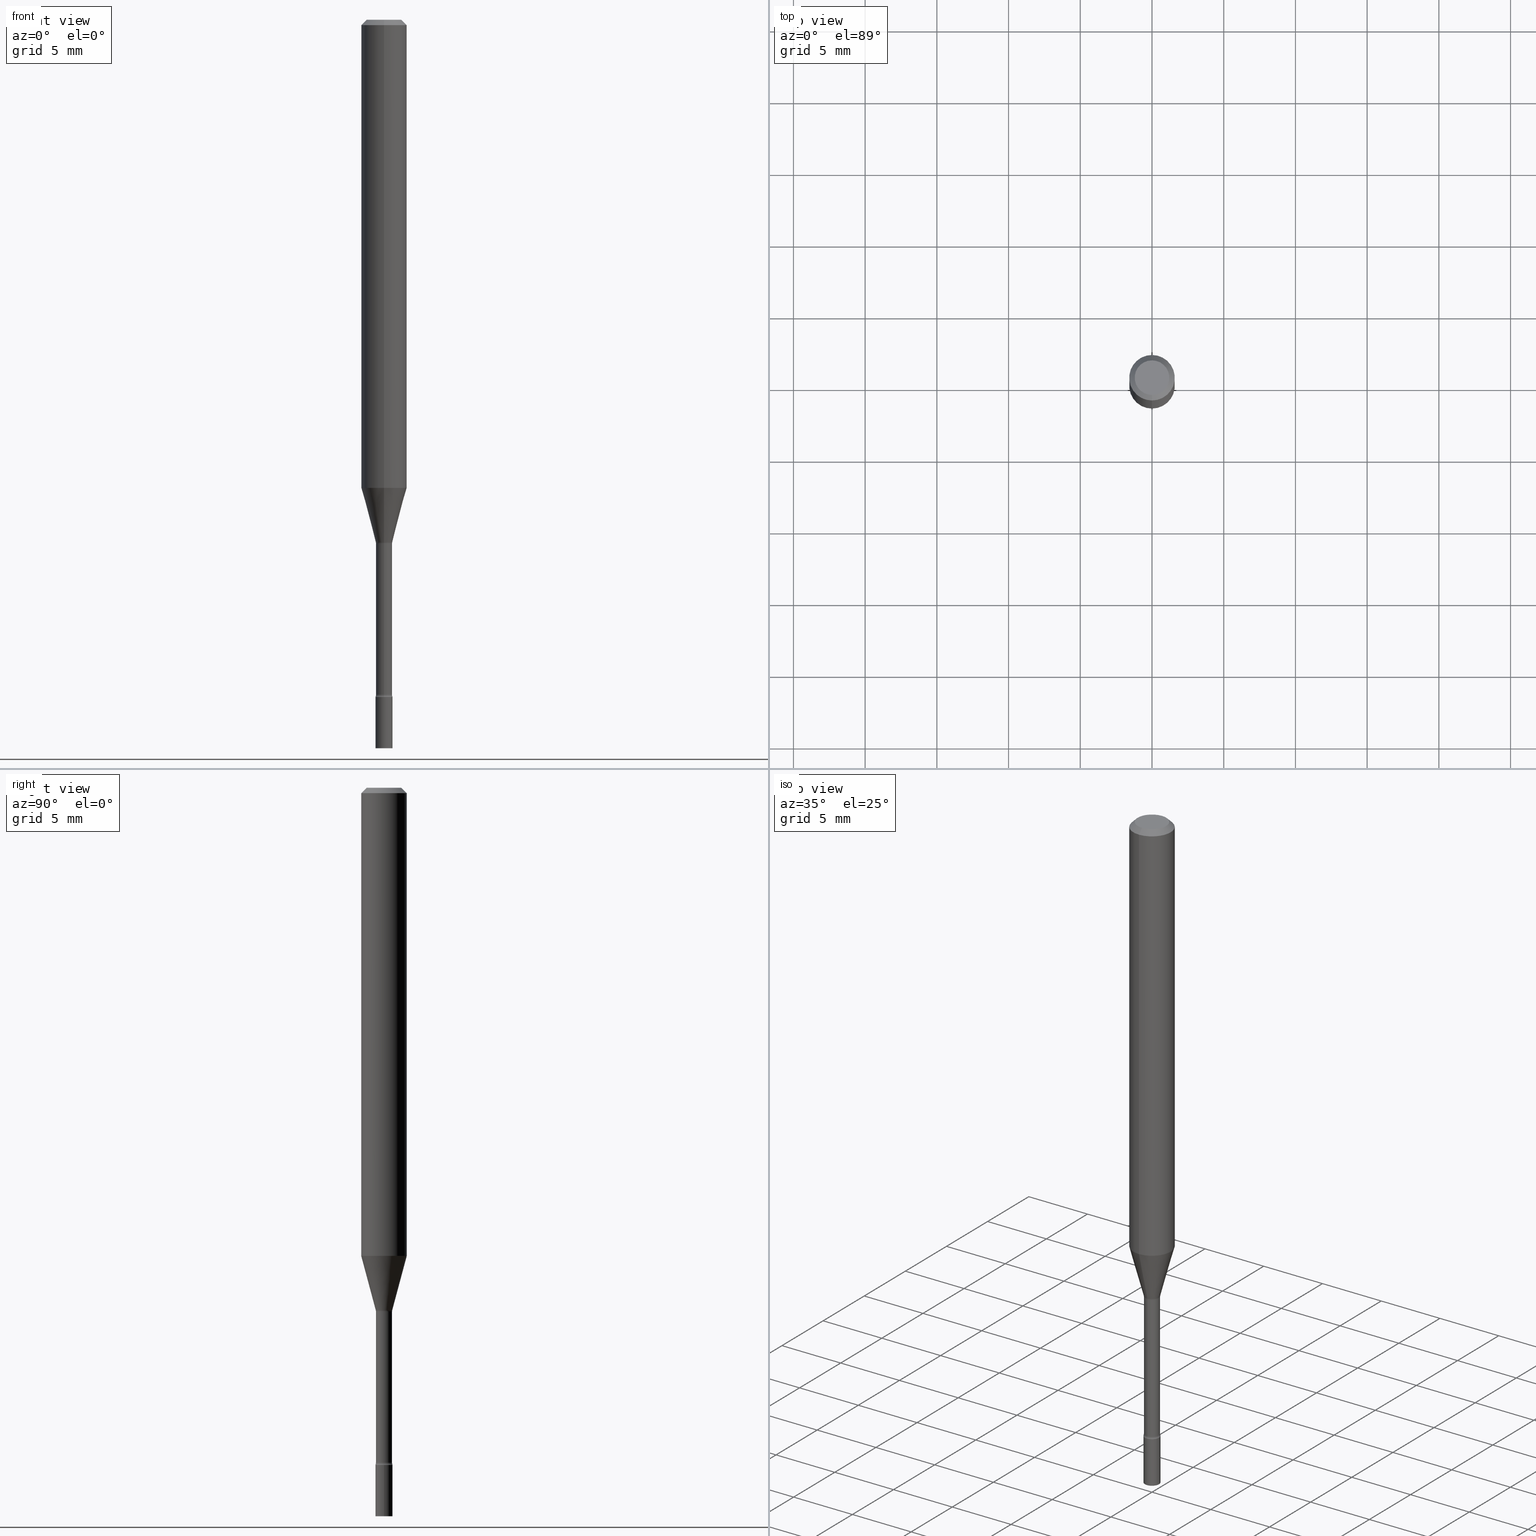
[diagram: canonical four-view strip — front | top / right | iso, engineering-drawing reading convention]
A machine part, canonical four-view strip (front | top / right | iso — engineering-drawing reading convention). The complete STEP part file that produces these views, byte-faithful:
ISO-10303-21;
HEADER;
FILE_DESCRIPTION (( 'STEP AP203' ),
    '1' );
FILE_NAME ('01348.STEP',
    '2024-03-08T21:15:39',
    ( '' ),
    ( '' ),
    'SwSTEP 2.0',
    'SolidWorks 2023',
    '' );
FILE_SCHEMA (( 'CONFIG_CONTROL_DESIGN' ));
ENDSEC;

DATA;
#1 = DIRECTION ( 'NONE',  ( 2.438088387897960049E-29, -3.491481338843145188E-15, -1.000000000000000000 ) ) ;
#2 = AXIS2_PLACEMENT_3D ( 'NONE', #491, #159, #312 ) ;
#3 = LINE ( 'NONE', #311, #17 ) ;
#4 = PRODUCT ( '01348', '01348', '', ( #249 ) ) ;
#5 = DIRECTION ( 'NONE',  ( 0.000000000000000000, 0.000000000000000000, 1.000000000000000000 ) ) ;
#6 = TOROIDAL_SURFACE ( 'NONE', #467, 0.03710000000000000103, 0.01500000000000003240 ) ;
#7 = ADVANCED_FACE ( 'NONE', ( #31 ), #100, .F. ) ;
#8 = DIRECTION ( 'NONE',  ( -6.982962677686266711E-15, -1.000000000000000000, 0.000000000000000000 ) ) ;
#9 = EDGE_LOOP ( 'NONE', ( #352, #503, #49, #32 ) ) ;
#10 = CARTESIAN_POINT ( 'NONE',  ( 0.02350000000000000352, -1.640996229256272766E-16, 1.145901542312045115E-30 ) ) ;
#11 = AXIS2_PLACEMENT_3D ( 'NONE', #519, #27, #153 ) ;
#12 = CONICAL_SURFACE ( 'NONE', #156, 0.06250000000000000000, 0.7853981633974483900 ) ;
#13 = DIRECTION ( 'NONE',  ( 7.105427357601001859E-15, 1.000000000000000000, 0.000000000000000000 ) ) ;
#14 = CALENDAR_DATE ( 2024, 8, 3 ) ;
#15 = ORIENTED_EDGE ( 'NONE', *, *, #21, .F. ) ;
#16 = DIRECTION ( 'NONE',  ( -6.982962677686265922E-15, -1.000000000000000000, 3.491517065858421989E-15 ) ) ;
#17 = VECTOR ( 'NONE', #393, 39.37007874015748143 ) ;
#18 = AXIS2_PLACEMENT_3D ( 'NONE', #412, #211, #175 ) ;
#19 = CARTESIAN_POINT ( 'NONE',  ( 1.640996229256727347E-16, 0.02349999999999350872, -1.858999999999999986 ) ) ;
#20 = DATE_AND_TIME ( #335, #116 ) ;
#21 = EDGE_CURVE ( 'NONE', #34, #157, #233, .T. ) ;
#22 = VERTEX_POINT ( 'NONE', #398 ) ;
#23 = COORDINATED_UNIVERSAL_TIME_OFFSET ( 5, 0, .BEHIND. ) ;
#24 = DIRECTION ( 'NONE',  ( -2.445443858143710310E-29, 3.491517065858421989E-15, 1.000000000000000000 ) ) ;
#25 = CC_DESIGN_DATE_AND_TIME_ASSIGNMENT ( #306, #55, ( #26 ) ) ;
#26 = SECURITY_CLASSIFICATION ( '', '', #57 ) ;
#27 = DIRECTION ( 'NONE',  ( -2.445468806185136597E-29, 3.491481338843145583E-15, 1.000000000000000000 ) ) ;
#28 = DIRECTION ( 'NONE',  ( -6.982962677686265922E-15, -1.000000000000000000, 3.491517065858421989E-15 ) ) ;
#29 = ORIENTED_EDGE ( 'NONE', *, *, #214, .F. ) ;
#30 = CARTESIAN_POINT ( 'NONE',  ( 4.440892098500937762E-16, 0.06249999999999548278, -1.285225147374218002 ) ) ;
#31 = FACE_OUTER_BOUND ( 'NONE', #438, .T. ) ;
#32 = ORIENTED_EDGE ( 'NONE', *, *, #272, .F. ) ;
#33 = TOROIDAL_SURFACE ( 'NONE', #2, 0.03710000000000005654, 0.01499999999999999077 ) ;
#34 = VERTEX_POINT ( 'NONE', #200 ) ;
#35 = CARTESIAN_POINT ( 'NONE',  ( 0.000000000000000000, 0.000000000000000000, 0.000000000000000000 ) ) ;
#36 = ORIENTED_EDGE ( 'NONE', *, *, #106, .T. ) ;
#37 = UNCERTAINTY_MEASURE_WITH_UNIT (LENGTH_MEASURE( 1.000000000000000082E-05 ), #320, 'distance_accuracy_value', 'NONE');
#38 = EDGE_CURVE ( 'NONE', #356, #264, #274, .T. ) ;
#39 = ORIENTED_EDGE ( 'NONE', *, *, #392, .F. ) ;
#40 = AXIS2_PLACEMENT_3D ( 'NONE', #375, #137, #416 ) ;
#41 = DIRECTION ( 'NONE',  ( 6.982962677686265922E-15, 1.000000000000000000, -3.483106191921935554E-15 ) ) ;
#42 = CARTESIAN_POINT ( 'NONE',  ( 4.530606056085395644E-29, -6.468636894208376404E-15, -1.852672283192177582 ) ) ;
#43 = DIRECTION ( 'NONE',  ( -6.982962677686265922E-15, -1.000000000000000000, 4.370956789862821150E-15 ) ) ;
#44 = ORIENTED_EDGE ( 'NONE', *, *, #392, .T. ) ;
#45 = CARTESIAN_POINT ( 'NONE',  ( 4.546080132289157985E-29, -6.490730225430807610E-15, -1.858999999999999986 ) ) ;
#46 = AXIS2_PLACEMENT_3D ( 'NONE', #440, #360, #316 ) ;
#47 = DIRECTION ( 'NONE',  ( -2.445443858143710310E-29, 3.491517065858421989E-15, 1.000000000000000000 ) ) ;
#48 = CARTESIAN_POINT ( 'NONE',  ( 4.546126510698169319E-29, -6.490663808909408226E-15, -1.858999999999999986 ) ) ;
#49 = ORIENTED_EDGE ( 'NONE', *, *, #483, .F. ) ;
#50 = EDGE_CURVE ( 'NONE', #231, #452, #114, .T. ) ;
#51 = APPROVAL_DATE_TIME ( #147, #344 ) ;
#52 = EDGE_LOOP ( 'NONE', ( #104, #271, #358, #454 ) ) ;
#53 = AXIS2_PLACEMENT_3D ( 'NONE', #278, #113, #275 ) ;
#54 = PRODUCT_DEFINITION_FORMATION_WITH_SPECIFIED_SOURCE ( 'ANY', '', #4, .NOT_KNOWN. ) ;
#55 = DATE_TIME_ROLE ( 'classification_date' ) ;
#56 = VERTEX_POINT ( 'NONE', #442 ) ;
#57 = SECURITY_CLASSIFICATION_LEVEL ( 'unclassified' ) ;
#58 = EDGE_CURVE ( 'NONE', #455, #56, #509, .T. ) ;
#59 = CARTESIAN_POINT ( 'NONE',  ( 3.840629472727447874E-16, 0.04749999999999999362, -1.947592745229184119E-16 ) ) ;
#60 = APPLICATION_CONTEXT ( 'configuration controlled 3d designs of mechanical parts and assemblies' ) ;
#61 = CARTESIAN_POINT ( 'NONE',  ( -2.590679153421253437E-16, -0.03710000000000501785, -1.437974787463811133 ) ) ;
#62 = CONICAL_SURFACE ( 'NONE', #409, 0.06250000000000000000, 0.7853981633974483900 ) ;
#63 = AXIS2_PLACEMENT_3D ( 'NONE', #19, #252, #493 ) ;
#64 = ORIENTED_EDGE ( 'NONE', *, *, #296, .T. ) ;
#65 = CARTESIAN_POINT ( 'NONE',  ( -0.02350000000000000352, -6.569835700394226398E-15, -1.858999999999999986 ) ) ;
#66 = ORIENTED_EDGE ( 'NONE', *, *, #201, .T. ) ;
#67 = FACE_OUTER_BOUND ( 'NONE', #432, .T. ) ;
#68 = EDGE_LOOP ( 'NONE', ( #481, #76 ) ) ;
#69 = EDGE_CURVE ( 'NONE', #452, #231, #215, .T. ) ;
#70 = ORIENTED_EDGE ( 'NONE', *, *, #97, .T. ) ;
#71 = CARTESIAN_POINT ( 'NONE',  ( 4.890937612370273194E-29, -6.982962677686291165E-15, -2.000000000000000000 ) ) ;
#72 =( LENGTH_UNIT ( ) NAMED_UNIT ( * ) SI_UNIT ( $, .METRE. ) );
#73 = CIRCLE ( 'NONE', #420, 0.06250000000000000000 ) ;
#74 = ORIENTED_EDGE ( 'NONE', *, *, #427, .F. ) ;
#75 = CIRCLE ( 'NONE', #347, 0.01500000000000003240 ) ;
#76 = ORIENTED_EDGE ( 'NONE', *, *, #239, .T. ) ;
#77 = DIRECTION ( 'NONE',  ( -2.445443858143710310E-29, 3.491517065858421989E-15, 1.000000000000000000 ) ) ;
#78 = CARTESIAN_POINT ( 'NONE',  ( 3.668165787215572525E-31, -5.237275598787644570E-17, -0.01500000000000003067 ) ) ;
#79 = ORIENTED_EDGE ( 'NONE', *, *, #38, .F. ) ;
#80 = ADVANCED_FACE ( 'NONE', ( #120 ), #62, .T. ) ;
#81 = LINE ( 'NONE', #241, #124 ) ;
#82 = AXIS2_PLACEMENT_3D ( 'NONE', #230, #478, #382 ) ;
#83 = ORIENTED_EDGE ( 'NONE', *, *, #377, .T. ) ;
#84 = MANIFOLD_SOLID_BREP ( 'Body-Move/Copy2[1]', #476 ) ;
#85 = CYLINDRICAL_SURFACE ( 'NONE', #395, 0.02350000000000000352 ) ;
#86 = CIRCLE ( 'NONE', #380, 0.02209999999999999118 ) ;
#87 = PERSON_AND_ORGANIZATION ( #199, #430 ) ;
#88 = EDGE_CURVE ( 'NONE', #310, #34, #81, .T. ) ;
#89 = ORIENTED_EDGE ( 'NONE', *, *, #272, .T. ) ;
#90 = EDGE_LOOP ( 'NONE', ( #396, #172, #44, #29 ) ) ;
#91 = PERSON_AND_ORGANIZATION_ROLE ( 'design_supplier' ) ;
#92 = AXIS2_PLACEMENT_3D ( 'NONE', #131, #295, #379 ) ;
#93 = ORIENTED_EDGE ( 'NONE', *, *, #427, .T. ) ;
#94 = SHAPE_DEFINITION_REPRESENTATION ( #408, #353 ) ;
#95 = CARTESIAN_POINT ( 'NONE',  ( -0.02350000000000000352, 1.669775429036235687E-16, -1.155949746209903035E-30 ) ) ;
#96 = PERSON_AND_ORGANIZATION ( #199, #430 ) ;
#97 = EDGE_CURVE ( 'NONE', #105, #403, #362, .T. ) ;
#98 = CYLINDRICAL_SURFACE ( 'NONE', #456, 0.02210000000000002587 ) ;
#99 = CARTESIAN_POINT ( 'NONE',  ( 0.000000000000000000, 0.000000000000000000, 0.000000000000000000 ) ) ;
#100 = PLANE ( 'NONE',  #82 ) ;
#101 = ADVANCED_FACE ( 'NONE', ( #433 ), #6, .F. ) ;
#102 = CIRCLE ( 'NONE', #485, 0.01499999999999998904 ) ;
#103 = AXIS2_PLACEMENT_3D ( 'NONE', #480, #144, #164 ) ;
#104 = ORIENTED_EDGE ( 'NONE', *, *, #21, .T. ) ;
#105 = VERTEX_POINT ( 'NONE', #123 ) ;
#106 = EDGE_CURVE ( 'NONE', #105, #169, #284, .T. ) ;
#107 = APPLICATION_PROTOCOL_DEFINITION ( 'international standard', 'config_control_design', 1994, #451 ) ;
#108 = DIRECTION ( 'NONE',  ( -6.982962677686265922E-15, -1.000000000000000000, 3.483106191921935554E-15 ) ) ;
#109 = FACE_OUTER_BOUND ( 'NONE', #445, .T. ) ;
#110 = DIRECTION ( 'NONE',  ( 1.000000000000000000, -6.982962677686269866E-15, 0.000000000000000000 ) ) ;
#111 = DIRECTION ( 'NONE',  ( -1.000000000000000000, 6.982962677686265922E-15, -4.883557194083112340E-29 ) ) ;
#112 = EDGE_LOOP ( 'NONE', ( #119, #339, #64, #226 ) ) ;
#113 = DIRECTION ( 'NONE',  ( -2.445468806185136597E-29, 3.491481338843145583E-15, 1.000000000000000000 ) ) ;
#114 = CIRCLE ( 'NONE', #240, 0.04749999999999999362 ) ;
#115 = ORIENTED_EDGE ( 'NONE', *, *, #431, .T. ) ;
#116 = LOCAL_TIME ( 16, 15, 39.00000000000000000, #518 ) ;
#117 = FACE_OUTER_BOUND ( 'NONE', #399, .T. ) ;
#118 = DIRECTION ( 'NONE',  ( -6.982962677686266711E-15, -1.000000000000000000, 3.491517065858422384E-15 ) ) ;
#119 = ORIENTED_EDGE ( 'NONE', *, *, #155, .F. ) ;
#120 = FACE_OUTER_BOUND ( 'NONE', #112, .T. ) ;
#121 = ORIENTED_EDGE ( 'NONE', *, *, #50, .F. ) ;
#122 = APPROVAL ( #213, 'UNSPECIFIED' ) ;
#123 = CARTESIAN_POINT ( 'NONE',  ( 1.620037437533484049E-16, 0.02209999999999359352, -1.852672283192177582 ) ) ;
#124 = VECTOR ( 'NONE', #401, 39.37007874015748854 ) ;
#125 = CC_DESIGN_APPROVAL ( #122, ( #397 ) ) ;
#126 = EDGE_CURVE ( 'NONE', #105, #264, #102, .T. ) ;
#127 = ORIENTED_EDGE ( 'NONE', *, *, #280, .T. ) ;
#128 = FACE_OUTER_BOUND ( 'NONE', #9, .T. ) ;
#129 = LINE ( 'NONE', #269, #495 ) ;
#130 = PRODUCT_RELATED_PRODUCT_CATEGORY ( 'detail', '', ( #4 ) ) ;
#131 = CARTESIAN_POINT ( 'NONE',  ( 3.668165787215572525E-31, -5.237275598787644570E-17, -0.01500000000000003067 ) ) ;
#132 = FACE_OUTER_BOUND ( 'NONE', #90, .T. ) ;
#133 = DIRECTION ( 'NONE',  ( -2.445443858143710310E-29, 3.491517065858421989E-15, 1.000000000000000000 ) ) ;
#134 = EDGE_CURVE ( 'NONE', #403, #340, #289, .T. ) ;
#135 = AXIS2_PLACEMENT_3D ( 'NONE', #441, #77, #236 ) ;
#136 = DIRECTION ( 'NONE',  ( -2.445443858143710310E-29, 3.491517065858421989E-15, 1.000000000000000000 ) ) ;
#137 = DIRECTION ( 'NONE',  ( -2.445443858143710310E-29, 3.491517065858421989E-15, 1.000000000000000000 ) ) ;
#138 = VERTEX_POINT ( 'NONE', #268 ) ;
#139 = CARTESIAN_POINT ( 'NONE',  ( -1.543234751768666594E-16, -0.02210000000000002587, 7.716252715547121836E-17 ) ) ;
#140 = CARTESIAN_POINT ( 'NONE',  ( 3.516486612168884789E-29, -5.020713510704033557E-15, -1.437974787463811133 ) ) ;
#141 = PERSON_AND_ORGANIZATION ( #199, #430 ) ;
#142 = CARTESIAN_POINT ( 'NONE',  ( -4.364351673553916201E-16, -0.06250000000000000000, 2.182198166161513743E-16 ) ) ;
#143 = DIRECTION ( 'NONE',  ( -6.982962677686265922E-15, -1.000000000000000000, 0.000000000000000000 ) ) ;
#144 = DIRECTION ( 'NONE',  ( -2.445468806185136597E-29, 3.491481338843145583E-15, 1.000000000000000000 ) ) ;
#145 = ORIENTED_EDGE ( 'NONE', *, *, #292, .F. ) ;
#146 = ORIENTED_EDGE ( 'NONE', *, *, #50, .T. ) ;
#147 = DATE_AND_TIME ( #341, #197 ) ;
#148 = CARTESIAN_POINT ( 'NONE',  ( -1.543234751768312592E-16, -0.02210000000000501147, -1.437974787463811133 ) ) ;
#149 = AXIS2_PLACEMENT_3D ( 'NONE', #42, #309, #479 ) ;
#150 = DIRECTION ( 'NONE',  ( 1.839019923739596765E-15, 0.2588190451025244587, 0.9659258262890673130 ) ) ;
#151 = VECTOR ( 'NONE', #391, 39.37007874015748143 ) ;
#152 = DESIGN_CONTEXT ( 'detailed design', #60, 'design' ) ;
#153 = DIRECTION ( 'NONE',  ( 1.000000000000000000, -6.982962677686269866E-15, 0.000000000000000000 ) ) ;
#154 = DIRECTION ( 'NONE',  ( -6.982962677686265922E-15, -1.000000000000000000, 3.491517065858421989E-15 ) ) ;
#155 = EDGE_CURVE ( 'NONE', #231, #56, #3, .T. ) ;
#156 = AXIS2_PLACEMENT_3D ( 'NONE', #428, #349, #41 ) ;
#157 = VERTEX_POINT ( 'NONE', #30 ) ;
#158 = CARTESIAN_POINT ( 'NONE',  ( 3.506992700505635745E-29, -5.007158444009865357E-15, -1.434092501787273211 ) ) ;
#159 = DIRECTION ( 'NONE',  ( -2.445443858143710310E-29, 3.491517065858421989E-15, 1.000000000000000000 ) ) ;
#160 = EDGE_CURVE ( 'NONE', #22, #138, #246, .T. ) ;
#161 = DIRECTION ( 'NONE',  ( -2.445443858143710310E-29, 3.491517065858421989E-15, 1.000000000000000000 ) ) ;
#162 = DIRECTION ( 'NONE',  ( -2.445443858143710310E-29, 3.491517065858421989E-15, 1.000000000000000000 ) ) ;
#163 = ORIENTED_EDGE ( 'NONE', *, *, #464, .F. ) ;
#164 = DIRECTION ( 'NONE',  ( 1.000000000000000000, -6.982962677686269866E-15, 0.000000000000000000 ) ) ;
#165 = ADVANCED_FACE ( 'NONE', ( #192 ), #314, .T. ) ;
#166 = TOROIDAL_SURFACE ( 'NONE', #40, 0.03710000000000000103, 0.01500000000000003240 ) ;
#167 = DIRECTION ( 'NONE',  ( -6.982962677686265922E-15, -1.000000000000000000, 3.491517065858421989E-15 ) ) ;
#168 = PLANE ( 'NONE',  #196 ) ;
#169 = VERTEX_POINT ( 'NONE', #261 ) ;
#170 = PLANE ( 'NONE',  #63 ) ;
#171 = APPROVAL ( #218, 'UNSPECIFIED' ) ;
#172 = ORIENTED_EDGE ( 'NONE', *, *, #490, .T. ) ;
#173 = CARTESIAN_POINT ( 'NONE',  ( 4.530606056085395644E-29, -6.468636894208376404E-15, -1.852672283192177582 ) ) ;
#174 = ORIENTED_EDGE ( 'NONE', *, *, #520, .F. ) ;
#175 = DIRECTION ( 'NONE',  ( -6.982962677686266711E-15, -1.000000000000000000, 0.000000000000000000 ) ) ;
#176 = APPROVAL_ROLE ( '' ) ;
#177 = CLOSED_SHELL ( 'NONE', ( #288, #355, #368, #472, #417, #165, #248, #318, #80, #7, #413, #228, #203, #101 ) ) ;
#178 = AXIS2_PLACEMENT_3D ( 'NONE', #404, #367, #167 ) ;
#179 = CC_DESIGN_DATE_AND_TIME_ASSIGNMENT ( #469, #221, ( #397 ) ) ;
#180 = ORIENTED_EDGE ( 'NONE', *, *, #134, .F. ) ;
#181 = APPLICATION_PROTOCOL_DEFINITION ( 'international standard', 'config_control_design', 1994, #60 ) ;
#182 = DIRECTION ( 'NONE',  ( -2.445468806185136597E-29, 3.491481338843145583E-15, 1.000000000000000000 ) ) ;
#183 = AXIS2_PLACEMENT_3D ( 'NONE', #78, #238, #108 ) ;
#184 = CARTESIAN_POINT ( 'NONE',  ( 4.440892098500941706E-16, 0.06249999999999995143, -0.01500000000000024751 ) ) ;
#185 = CYLINDRICAL_SURFACE ( 'NONE', #178, 0.06250000000000000000 ) ;
#186 = CC_DESIGN_APPROVAL ( #344, ( #54 ) ) ;
#187 = DIRECTION ( 'NONE',  ( -6.982962677686266711E-15, -1.000000000000000000, 0.000000000000000000 ) ) ;
#188 = LINE ( 'NONE', #343, #308 ) ;
#189 = EDGE_CURVE ( 'NONE', #340, #169, #86, .T. ) ;
#190 = DIRECTION ( 'NONE',  ( -6.982962677686265922E-15, -1.000000000000000000, 3.491517065858421989E-15 ) ) ;
#191 = CARTESIAN_POINT ( 'NONE',  ( 4.530652276630265840E-29, -6.468570703757412318E-15, -1.852672283192177582 ) ) ;
#192 = FACE_OUTER_BOUND ( 'NONE', #217, .T. ) ;
#193 = FACE_OUTER_BOUND ( 'NONE', #449, .T. ) ;
#194 = EDGE_LOOP ( 'NONE', ( #317, #83, #198, #235 ) ) ;
#195 = VECTOR ( 'NONE', #293, 39.37007874015748143 ) ;
#196 = AXIS2_PLACEMENT_3D ( 'NONE', #48, #373, #338 ) ;
#197 = LOCAL_TIME ( 16, 15, 39.00000000000000000, #421 ) ;
#198 = ORIENTED_EDGE ( 'NONE', *, *, #88, .T. ) ;
#199 = PERSON ( 'UNSPECIFIED', 'UNSPECIFIED', 'UNSPECIFIED', ('UNSPECIFIED'), ('UNSPECIFIED'), ('UNSPECIFIED') ) ;
#200 = CARTESIAN_POINT ( 'NONE',  ( -4.364351673553603122E-16, -0.06250000000000451028, -1.285225147374217336 ) ) ;
#201 = EDGE_CURVE ( 'NONE', #138, #22, #494, .T. ) ;
#202 = CIRCLE ( 'NONE', #92, 0.06250000000000000000 ) ;
#203 = ADVANCED_FACE ( 'NONE', ( #471 ), #98, .T. ) ;
#204 = VECTOR ( 'NONE', #342, 39.37007874015748143 ) ;
#205 = ADVANCED_FACE ( 'NONE', ( #67 ), #466, .T. ) ;
#206 = DIRECTION ( 'NONE',  ( -2.445443858143710310E-29, 3.491517065858421989E-15, 1.000000000000000000 ) ) ;
#207 = FACE_OUTER_BOUND ( 'NONE', #52, .T. ) ;
#208 = ORIENTED_EDGE ( 'NONE', *, *, #189, .T. ) ;
#209 = ORIENTED_EDGE ( 'NONE', *, *, #201, .F. ) ;
#210 = VECTOR ( 'NONE', #501, 39.37007874015748143 ) ;
#211 = DIRECTION ( 'NONE',  ( -2.445443858143710310E-29, 3.491517065858421989E-15, 1.000000000000000000 ) ) ;
#212 = CIRCLE ( 'NONE', #477, 0.02210000000000006057 ) ;
#213 = APPROVAL_STATUS ( 'not_yet_approved' ) ;
#214 = EDGE_CURVE ( 'NONE', #310, #340, #446, .T. ) ;
#215 = CIRCLE ( 'NONE', #436, 0.04749999999999999362 ) ;
#216 = AXIS2_PLACEMENT_3D ( 'NONE', #35, #5, #332 ) ;
#217 = EDGE_LOOP ( 'NONE', ( #324, #497, #15, #402 ) ) ;
#218 = APPROVAL_STATUS ( 'not_yet_approved' ) ;
#219 = ADVANCED_FACE ( 'NONE', ( #193 ), #474, .T. ) ;
#220 = ORIENTED_EDGE ( 'NONE', *, *, #431, .F. ) ;
#221 = DATE_TIME_ROLE ( 'creation_date' ) ;
#222 = DIRECTION ( 'NONE',  ( -2.445443858143710310E-29, 3.491517065858421989E-15, 1.000000000000000000 ) ) ;
#223 = CC_DESIGN_PERSON_AND_ORGANIZATION_ASSIGNMENT ( #329, #253, ( #54 ) ) ;
#224 = DIRECTION ( 'NONE',  ( -2.445443858143710310E-29, 3.491517065858421989E-15, 1.000000000000000000 ) ) ;
#225 = CONICAL_SURFACE ( 'NONE', #135, 0.02261111260566396955, 0.2617993877991497409 ) ;
#226 = ORIENTED_EDGE ( 'NONE', *, *, #58, .T. ) ;
#227 = CIRCLE ( 'NONE', #18, 0.02261111260566396955 ) ;
#228 = ADVANCED_FACE ( 'NONE', ( #117 ), #33, .F. ) ;
#229 = CARTESIAN_POINT ( 'NONE',  ( 0.000000000000000000, 0.000000000000000000, 0.000000000000000000 ) ) ;
#230 = CARTESIAN_POINT ( 'NONE',  ( 3.316907271900976096E-16, 0.04749999999999999362, -1.803031675755967257E-16 ) ) ;
#231 = VERTEX_POINT ( 'NONE', #482 ) ;
#232 = CARTESIAN_POINT ( 'NONE',  ( 0.000000000000000000, 0.000000000000000000, 0.000000000000000000 ) ) ;
#233 = CIRCLE ( 'NONE', #516, 0.06250000000000000000 ) ;
#234 = CC_DESIGN_SECURITY_CLASSIFICATION ( #26, ( #54 ) ) ;
#235 = ORIENTED_EDGE ( 'NONE', *, *, #255, .F. ) ;
#236 = DIRECTION ( 'NONE',  ( -6.982962677686266711E-15, -1.000000000000000000, 0.000000000000000000 ) ) ;
#237 = CC_DESIGN_PERSON_AND_ORGANIZATION_ASSIGNMENT ( #96, #91, ( #54 ) ) ;
#238 = DIRECTION ( 'NONE',  ( -2.445443858143710310E-29, 3.491517065858421989E-15, 1.000000000000000000 ) ) ;
#239 = EDGE_CURVE ( 'NONE', #444, #322, #283, .T. ) ;
#240 = AXIS2_PLACEMENT_3D ( 'NONE', #321, #487, #118 ) ;
#241 = CARTESIAN_POINT ( 'NONE',  ( -1.578925554262778977E-16, -0.02261111260566897943, -1.434092501787273211 ) ) ;
#242 = DIRECTION ( 'NONE',  ( 1.000000000000000000, -7.105427357601001070E-15, 4.926315946071830804E-29 ) ) ;
#243 = CARTESIAN_POINT ( 'NONE',  ( 2.636113549670428316E-16, 0.03709999999999358949, -1.852672283192177582 ) ) ;
#244 = DIRECTION ( 'NONE',  ( -2.445443858143710310E-29, 3.491517065858421989E-15, 1.000000000000000000 ) ) ;
#245 = DIRECTION ( 'NONE',  ( -2.445468806185136597E-29, 3.491481338843145583E-15, 1.000000000000000000 ) ) ;
#246 = CIRCLE ( 'NONE', #307, 0.02350000000000000352 ) ;
#247 = APPROVAL_PERSON_ORGANIZATION ( #300, #344, #423 ) ;
#248 = ADVANCED_FACE ( 'NONE', ( #439 ), #225, .T. ) ;
#249 = MECHANICAL_CONTEXT ( 'NONE', #451, 'mechanical' ) ;
#250 = LINE ( 'NONE', #142, #204 ) ;
#251 = MANIFOLD_SOLID_BREP ( 'Body-Move/Copy2[2]', #177 ) ;
#252 = DIRECTION ( 'NONE',  ( -2.445443858143710310E-29, 3.491517065858421989E-15, 1.000000000000000000 ) ) ;
#253 = PERSON_AND_ORGANIZATION_ROLE ( 'creator' ) ;
#254 = DIRECTION ( 'NONE',  ( -2.445443858143710310E-29, 3.491517065858421989E-15, 1.000000000000000000 ) ) ;
#255 = EDGE_CURVE ( 'NONE', #157, #34, #73, .T. ) ;
#256 = AXIS2_PLACEMENT_3D ( 'NONE', #61, #111, #348 ) ;
#257 = AXIS2_PLACEMENT_3D ( 'NONE', #140, #133, #411 ) ;
#258 = CARTESIAN_POINT ( 'NONE',  ( 3.142945942978125100E-29, -4.487385535527487373E-15, -1.285225147374217780 ) ) ;
#259 = LOCAL_TIME ( 16, 15, 39.00000000000000000, #511 ) ;
#260 = APPROVAL_STATUS ( 'not_yet_approved' ) ;
#261 = CARTESIAN_POINT ( 'NONE',  ( 1.570299446030275858E-16, 0.02209999999999497436, -1.437974787463811133 ) ) ;
#262 = FACE_OUTER_BOUND ( 'NONE', #299, .T. ) ;
#263 = ADVANCED_FACE ( 'NONE', ( #450 ), #168, .T. ) ;
#264 = VERTEX_POINT ( 'NONE', #327 ) ;
#265 = VECTOR ( 'NONE', #504, 39.37007874015748143 ) ;
#266 = ADVANCED_FACE ( 'NONE', ( #128 ), #85, .T. ) ;
#267 = APPROVAL_PERSON_ORGANIZATION ( #141, #171, #415 ) ;
#268 = CARTESIAN_POINT ( 'NONE',  ( -0.02350000000000000352, -6.569835700394226398E-15, -2.000000000000000000 ) ) ;
#269 = CARTESIAN_POINT ( 'NONE',  ( 4.364351673553919652E-16, 0.06249999999999995143, -0.01500000000000024751 ) ) ;
#270 = DIRECTION ( 'NONE',  ( 6.982962677686265922E-15, 1.000000000000000000, -3.483106191921935554E-15 ) ) ;
#271 = ORIENTED_EDGE ( 'NONE', *, *, #359, .T. ) ;
#272 = EDGE_CURVE ( 'NONE', #22, #322, #507, .T. ) ;
#273 = VERTEX_POINT ( 'NONE', #462 ) ;
#274 = CIRCLE ( 'NONE', #46, 0.02350000000000000352 ) ;
#275 = DIRECTION ( 'NONE',  ( 1.000000000000000000, -6.982962677686269866E-15, 0.000000000000000000 ) ) ;
#276 = APPROVAL_PERSON_ORGANIZATION ( #87, #122, #176 ) ;
#277 = ORIENTED_EDGE ( 'NONE', *, *, #126, .F. ) ;
#278 = CARTESIAN_POINT ( 'NONE',  ( 4.546126510698169319E-29, -6.490663808909408226E-15, -1.858999999999999986 ) ) ;
#279 = ORIENTED_EDGE ( 'NONE', *, *, #58, .F. ) ;
#280 = EDGE_CURVE ( 'NONE', #56, #455, #202, .T. ) ;
#281 = CARTESIAN_POINT ( 'NONE',  ( 3.668165787215572525E-31, -5.237275598787644570E-17, -0.01500000000000003067 ) ) ;
#282 = ORIENTED_EDGE ( 'NONE', *, *, #126, .T. ) ;
#283 = CIRCLE ( 'NONE', #53, 0.02350000000000000352 ) ;
#284 = LINE ( 'NONE', #333, #210 ) ;
#285 = AXIS2_PLACEMENT_3D ( 'NONE', #498, #47, #28 ) ;
#286 = DIRECTION ( 'NONE',  ( 7.105427357601001859E-15, 1.000000000000000000, 0.000000000000000000 ) ) ;
#287 = ORIENTED_EDGE ( 'NONE', *, *, #38, .T. ) ;
#288 = ADVANCED_FACE ( 'NONE', ( #132 ), #166, .F. ) ;
#289 = LINE ( 'NONE', #139, #195 ) ;
#290 = AXIS2_PLACEMENT_3D ( 'NONE', #229, #385, #305 ) ;
#291 = APPROVAL_DATE_TIME ( #294, #171 ) ;
#292 = EDGE_CURVE ( 'NONE', #264, #356, #334, .T. ) ;
#293 = DIRECTION ( 'NONE',  ( -2.445443858143710310E-29, 3.491517065858421989E-15, 1.000000000000000000 ) ) ;
#294 = DATE_AND_TIME ( #14, #259 ) ;
#295 = DIRECTION ( 'NONE',  ( -2.445443858143710310E-29, 3.491517065858421989E-15, 1.000000000000000000 ) ) ;
#296 = EDGE_CURVE ( 'NONE', #452, #455, #129, .T. ) ;
#297 = ORIENTED_EDGE ( 'NONE', *, *, #255, .T. ) ;
#298 = LENGTH_MEASURE_WITH_UNIT ( LENGTH_MEASURE( 0.02539999999999999897 ), #72 );
#299 = EDGE_LOOP ( 'NONE', ( #463, #282, #489, #74 ) ) ;
#300 = PERSON_AND_ORGANIZATION ( #199, #430 ) ;
#301 = CARTESIAN_POINT ( 'NONE',  ( 3.506992700505635745E-29, -5.007158444009865357E-15, -1.434092501787273211 ) ) ;
#302 = AXIS2_PLACEMENT_3D ( 'NONE', #354, #1, #315 ) ;
#303 = AXIS2_PLACEMENT_3D ( 'NONE', #232, #390, #190 ) ;
#304 = LINE ( 'NONE', #95, #151 ) ;
#305 = DIRECTION ( 'NONE',  ( 1.000000000000000000, -6.982962677686265922E-15, 4.876176775795935793E-29 ) ) ;
#306 = DATE_AND_TIME ( #418, #400 ) ;
#307 = AXIS2_PLACEMENT_3D ( 'NONE', #71, #182, #110 ) ;
#308 = VECTOR ( 'NONE', #150, 39.37007874015748143 ) ;
#309 = DIRECTION ( 'NONE',  ( -2.445443858143710310E-29, 3.491517065858421989E-15, 1.000000000000000000 ) ) ;
#310 = VERTEX_POINT ( 'NONE', #389 ) ;
#311 = CARTESIAN_POINT ( 'NONE',  ( -4.287811248607203282E-16, -0.06250000000000005551, -0.01499999999999981209 ) ) ;
#312 = DIRECTION ( 'NONE',  ( -6.982962677686265922E-15, -1.000000000000000000, 3.491517065858421989E-15 ) ) ;
#313 = CYLINDRICAL_SURFACE ( 'NONE', #303, 0.02210000000000002587 ) ;
#314 = CONICAL_SURFACE ( 'NONE', #387, 0.02261111260566396955, 0.2617993877991497409 ) ;
#315 = DIRECTION ( 'NONE',  ( -1.000000000000000000, 6.982962677686265922E-15, -4.876176775795935793E-29 ) ) ;
#316 = DIRECTION ( 'NONE',  ( -6.982962677686265922E-15, -1.000000000000000000, 0.000000000000000000 ) ) ;
#317 = ORIENTED_EDGE ( 'NONE', *, *, #448, .F. ) ;
#318 = ADVANCED_FACE ( 'NONE', ( #473 ), #185, .T. ) ;
#319 = ORIENTED_EDGE ( 'NONE', *, *, #106, .F. ) ;
#320 =( CONVERSION_BASED_UNIT ( 'INCH', #298 ) LENGTH_UNIT ( ) NAMED_UNIT ( #357 ) );
#321 = CARTESIAN_POINT ( 'NONE',  ( 7.070319589399287059E-46, -1.009474882248963321E-31, -2.891221389464337234E-17 ) ) ;
#322 = VERTEX_POINT ( 'NONE', #326 ) ;
#323 = DIRECTION ( 'NONE',  ( -6.982962677686265922E-15, -1.000000000000000000, 4.370956789862821150E-15 ) ) ;
#324 = ORIENTED_EDGE ( 'NONE', *, *, #520, .T. ) ;
#325 = EDGE_LOOP ( 'NONE', ( #371, #297, #383, #279 ) ) ;
#326 = CARTESIAN_POINT ( 'NONE',  ( 0.02350000000000000352, -6.654763431835035084E-15, -1.858999999999999986 ) ) ;
#327 = CARTESIAN_POINT ( 'NONE',  ( 1.669775429036689529E-16, 0.02349999999999350525, -1.858999999999999986 ) ) ;
#328 = ORIENTED_EDGE ( 'NONE', *, *, #160, .F. ) ;
#329 = PERSON_AND_ORGANIZATION ( #199, #430 ) ;
#330 = CC_DESIGN_PERSON_AND_ORGANIZATION_ASSIGNMENT ( #513, #460, ( #4 ) ) ;
#331 = ORIENTED_EDGE ( 'NONE', *, *, #214, .T. ) ;
#332 = DIRECTION ( 'NONE',  ( 1.000000000000000000, 0.000000000000000000, 0.000000000000000000 ) ) ;
#333 = CARTESIAN_POINT ( 'NONE',  ( 1.570299446029823003E-16, 0.02210000000000002587, -7.716252715547121836E-17 ) ) ;
#334 = CIRCLE ( 'NONE', #486, 0.02350000000000000352 ) ;
#335 = CALENDAR_DATE ( 2024, 8, 3 ) ;
#336 = TOROIDAL_SURFACE ( 'NONE', #388, 0.03710000000000005654, 0.01499999999999999077 ) ;
#337 = EDGE_CURVE ( 'NONE', #34, #56, #250, .T. ) ;
#338 = DIRECTION ( 'NONE',  ( 1.000000000000000000, -6.982962677686265922E-15, 4.876176775795935793E-29 ) ) ;
#339 = ORIENTED_EDGE ( 'NONE', *, *, #69, .F. ) ;
#340 = VERTEX_POINT ( 'NONE', #148 ) ;
#341 = CALENDAR_DATE ( 2024, 8, 3 ) ;
#342 = DIRECTION ( 'NONE',  ( -2.445443858143710310E-29, 3.491517065858421989E-15, 1.000000000000000000 ) ) ;
#343 = CARTESIAN_POINT ( 'NONE',  ( 1.606616180941166734E-16, 0.02261111260565896314, -1.434092501787273211 ) ) ;
#344 = APPROVAL ( #260, 'UNSPECIFIED' ) ;
#345 = PERSON_AND_ORGANIZATION_ROLE ( 'classification_officer' ) ;
#346 = DIRECTION ( 'NONE',  ( -6.982962677686265922E-15, -1.000000000000000000, 0.000000000000000000 ) ) ;
#347 = AXIS2_PLACEMENT_3D ( 'NONE', #514, #242, #286 ) ;
#348 = DIRECTION ( 'NONE',  ( -6.982962677686266711E-15, -1.000000000000000000, 0.000000000000000000 ) ) ;
#349 = DIRECTION ( 'NONE',  ( 2.445443858143710310E-29, -3.491517065858421989E-15, -1.000000000000000000 ) ) ;
#350 = CARTESIAN_POINT ( 'NONE',  ( -1.640996229255817445E-16, -0.02350000000000649139, -1.858999999999999986 ) ) ;
#351 = DIRECTION ( 'NONE',  ( -2.445443858143710310E-29, 3.491517065858421989E-15, 1.000000000000000000 ) ) ;
#352 = ORIENTED_EDGE ( 'NONE', *, *, #160, .T. ) ;
#353 = ADVANCED_BREP_SHAPE_REPRESENTATION ( '01348', ( #84, #251, #216 ), #517 ) ;
#354 = CARTESIAN_POINT ( 'NONE',  ( 1.640996229256761859E-16, 0.02349999999999301953, -2.000000000000000000 ) ) ;
#355 = ADVANCED_FACE ( 'NONE', ( #109 ), #313, .T. ) ;
#356 = VERTEX_POINT ( 'NONE', #350 ) ;
#357 = DIMENSIONAL_EXPONENTS ( 1.000000000000000000, 0.000000000000000000, 0.000000000000000000, 0.000000000000000000, 0.000000000000000000, 0.000000000000000000, 0.000000000000000000 ) ;
#358 = ORIENTED_EDGE ( 'NONE', *, *, #280, .F. ) ;
#359 = EDGE_CURVE ( 'NONE', #157, #455, #394, .T. ) ;
#360 = DIRECTION ( 'NONE',  ( -2.445443858143710310E-29, 3.491517065858421989E-15, 1.000000000000000000 ) ) ;
#361 = ORIENTED_EDGE ( 'NONE', *, *, #490, .F. ) ;
#362 = CIRCLE ( 'NONE', #149, 0.02210000000000006057 ) ;
#363 = CIRCLE ( 'NONE', #422, 0.01499999999999998904 ) ;
#364 = CARTESIAN_POINT ( 'NONE',  ( 7.070319589399287059E-46, -1.009474882248963321E-31, -2.891221389464337234E-17 ) ) ;
#365 = CARTESIAN_POINT ( 'NONE',  ( 0.000000000000000000, 0.000000000000000000, 0.000000000000000000 ) ) ;
#366 = CYLINDRICAL_SURFACE ( 'NONE', #285, 0.06250000000000000000 ) ;
#367 = DIRECTION ( 'NONE',  ( -2.445443858143710310E-29, 3.491517065858421989E-15, 1.000000000000000000 ) ) ;
#368 = ADVANCED_FACE ( 'NONE', ( #262 ), #336, .F. ) ;
#369 = CARTESIAN_POINT ( 'NONE',  ( 3.142945942978125100E-29, -4.487385535527487373E-15, -1.285225147374217780 ) ) ;
#370 = AXIS2_PLACEMENT_3D ( 'NONE', #301, #222, #8 ) ;
#371 = ORIENTED_EDGE ( 'NONE', *, *, #359, .F. ) ;
#372 = CC_DESIGN_PERSON_AND_ORGANIZATION_ASSIGNMENT ( #506, #345, ( #26 ) ) ;
#373 = DIRECTION ( 'NONE',  ( -2.438088387897960049E-29, 3.491481338843145188E-15, 1.000000000000000000 ) ) ;
#374 = DIRECTION ( 'NONE',  ( -1.000000000000000000, 6.982962677686265922E-15, -4.883557194083112340E-29 ) ) ;
#375 = CARTESIAN_POINT ( 'NONE',  ( 3.516522486823451947E-29, -5.020662136156834766E-15, -1.437974787463811133 ) ) ;
#376 = DIRECTION ( 'NONE',  ( -2.445443858143710310E-29, 3.491517065858421989E-15, 1.000000000000000000 ) ) ;
#377 = EDGE_CURVE ( 'NONE', #273, #310, #227, .T. ) ;
#378 = COORDINATED_UNIVERSAL_TIME_OFFSET ( 5, 0, .BEHIND. ) ;
#379 = DIRECTION ( 'NONE',  ( -6.982962677686265922E-15, -1.000000000000000000, 3.483106191921935554E-15 ) ) ;
#380 = AXIS2_PLACEMENT_3D ( 'NONE', #424, #24, #346 ) ;
#381 = CARTESIAN_POINT ( 'NONE',  ( -1.543234751768215957E-16, -0.02210000000000652762, -1.852672283192177582 ) ) ;
#382 = DIRECTION ( 'NONE',  ( 6.982962677686265922E-15, 1.000000000000000000, -3.491517065858421989E-15 ) ) ;
#383 = ORIENTED_EDGE ( 'NONE', *, *, #337, .T. ) ;
#384 = DIRECTION ( 'NONE',  ( 4.937700262164548042E-15, 0.7071067811865451302, -0.7071067811865499042 ) ) ;
#385 = DIRECTION ( 'NONE',  ( -2.445468806185136597E-29, 3.491481338843145583E-15, 1.000000000000000000 ) ) ;
#386 = PERSON_AND_ORGANIZATION_ROLE ( 'creator' ) ;
#387 = AXIS2_PLACEMENT_3D ( 'NONE', #158, #224, #187 ) ;
#388 = AXIS2_PLACEMENT_3D ( 'NONE', #191, #244, #16 ) ;
#389 = CARTESIAN_POINT ( 'NONE',  ( -1.578925554262778977E-16, -0.02261111260566897943, -1.434092501787273211 ) ) ;
#390 = DIRECTION ( 'NONE',  ( -2.445443858143710310E-29, 3.491517065858421989E-15, 1.000000000000000000 ) ) ;
#391 = DIRECTION ( 'NONE',  ( -2.445468806185136877E-29, 3.491481338843145188E-15, 1.000000000000000000 ) ) ;
#392 = EDGE_CURVE ( 'NONE', #169, #340, #447, .T. ) ;
#393 = DIRECTION ( 'NONE',  ( -4.851104656540964275E-15, -0.7071067811865500152, -0.7071067811865450192 ) ) ;
#394 = LINE ( 'NONE', #470, #510 ) ;
#395 = AXIS2_PLACEMENT_3D ( 'NONE', #365, #245, #407 ) ;
#396 = ORIENTED_EDGE ( 'NONE', *, *, #377, .F. ) ;
#397 = PRODUCT_DEFINITION ( 'UNKNOWN', '', #54, #152 ) ;
#398 = CARTESIAN_POINT ( 'NONE',  ( 0.02350000000000000352, -7.147062300611918023E-15, -2.000000000000000000 ) ) ;
#399 = EDGE_LOOP ( 'NONE', ( #277, #220, #93, #287 ) ) ;
#400 = LOCAL_TIME ( 16, 15, 39.00000000000000000, #378 ) ;
#401 = DIRECTION ( 'NONE',  ( -1.807323732225326589E-15, -0.2588190451025176864, 0.9659258262890690894 ) ) ;
#402 = ORIENTED_EDGE ( 'NONE', *, *, #88, .F. ) ;
#403 = VERTEX_POINT ( 'NONE', #381 ) ;
#404 = CARTESIAN_POINT ( 'NONE',  ( 0.000000000000000000, 0.000000000000000000, 0.000000000000000000 ) ) ;
#405 = DIRECTION ( 'NONE',  ( 1.000000000000000000, -7.105427357601001070E-15, 4.926315946071830804E-29 ) ) ;
#406 = ORIENTED_EDGE ( 'NONE', *, *, #239, .F. ) ;
#407 = DIRECTION ( 'NONE',  ( 1.000000000000000000, -6.982962677686265922E-15, 4.876176775795935793E-29 ) ) ;
#408 = PRODUCT_DEFINITION_SHAPE ( 'NONE', 'NONE',  #397 ) ;
#409 = AXIS2_PLACEMENT_3D ( 'NONE', #281, #443, #270 ) ;
#410 = LOCAL_TIME ( 16, 15, 39.00000000000000000, #23 ) ;
#411 = DIRECTION ( 'NONE',  ( -6.982962677686265922E-15, -1.000000000000000000, 0.000000000000000000 ) ) ;
#412 = CARTESIAN_POINT ( 'NONE',  ( 3.506992700505635745E-29, -5.007158444009865357E-15, -1.434092501787273211 ) ) ;
#413 = ADVANCED_FACE ( 'NONE', ( #453 ), #170, .F. ) ;
#414 = CARTESIAN_POINT ( 'NONE',  ( 3.516522486823451947E-29, -5.020662136156834766E-15, -1.437974787463811133 ) ) ;
#415 = APPROVAL_ROLE ( '' ) ;
#416 = DIRECTION ( 'NONE',  ( -6.982962677686265922E-15, -1.000000000000000000, 3.491517065858421989E-15 ) ) ;
#417 = ADVANCED_FACE ( 'NONE', ( #207 ), #366, .T. ) ;
#418 = CALENDAR_DATE ( 2024, 8, 3 ) ;
#419 = EDGE_LOOP ( 'NONE', ( #361, #174, #331, #208 ) ) ;
#420 = AXIS2_PLACEMENT_3D ( 'NONE', #369, #206, #43 ) ;
#421 = COORDINATED_UNIVERSAL_TIME_OFFSET ( 5, 0, .BEHIND. ) ;
#422 = AXIS2_PLACEMENT_3D ( 'NONE', #512, #374, #505 ) ;
#423 = APPROVAL_ROLE ( '' ) ;
#424 = CARTESIAN_POINT ( 'NONE',  ( 3.516486612168884789E-29, -5.020713510704033557E-15, -1.437974787463811133 ) ) ;
#425 = DIRECTION ( 'NONE',  ( -2.445443858143710310E-29, 3.491517065858421989E-15, 1.000000000000000000 ) ) ;
#426 = PERSON_AND_ORGANIZATION ( #199, #430 ) ;
#427 = EDGE_CURVE ( 'NONE', #403, #356, #363, .T. ) ;
#428 = CARTESIAN_POINT ( 'NONE',  ( 3.668165787215572525E-31, -5.237275598787644570E-17, -0.01500000000000003067 ) ) ;
#429 = EDGE_LOOP ( 'NONE', ( #121, #435, #127, #508 ) ) ;
#430 = ORGANIZATION ( 'UNSPECIFIED', 'UNSPECIFIED', '' ) ;
#431 = EDGE_CURVE ( 'NONE', #403, #105, #212, .T. ) ;
#432 = EDGE_LOOP ( 'NONE', ( #163, #66, #89, #406 ) ) ;
#433 = FACE_OUTER_BOUND ( 'NONE', #419, .T. ) ;
#434 = EDGE_LOOP ( 'NONE', ( #79, #145 ) ) ;
#435 = ORIENTED_EDGE ( 'NONE', *, *, #155, .T. ) ;
#436 = AXIS2_PLACEMENT_3D ( 'NONE', #364, #161, #488 ) ;
#437 = CIRCLE ( 'NONE', #103, 0.02350000000000000352 ) ;
#438 = EDGE_LOOP ( 'NONE', ( #475, #146 ) ) ;
#439 = FACE_OUTER_BOUND ( 'NONE', #194, .T. ) ;
#440 = CARTESIAN_POINT ( 'NONE',  ( 4.546080132289157985E-29, -6.490730225430807610E-15, -1.858999999999999986 ) ) ;
#441 = CARTESIAN_POINT ( 'NONE',  ( 3.506992700505635745E-29, -5.007158444009865357E-15, -1.434092501787273211 ) ) ;
#442 = CARTESIAN_POINT ( 'NONE',  ( -4.364351673553912750E-16, -0.06250000000000005551, -0.01499999999999981209 ) ) ;
#443 = DIRECTION ( 'NONE',  ( 2.445443858143710310E-29, -3.491517065858421989E-15, -1.000000000000000000 ) ) ;
#444 = VERTEX_POINT ( 'NONE', #65 ) ;
#445 = EDGE_LOOP ( 'NONE', ( #115, #36, #492, #180 ) ) ;
#446 = CIRCLE ( 'NONE', #256, 0.01500000000000003240 ) ;
#447 = CIRCLE ( 'NONE', #257, 0.02209999999999999118 ) ;
#448 = EDGE_CURVE ( 'NONE', #273, #157, #188, .T. ) ;
#449 = EDGE_LOOP ( 'NONE', ( #328, #209 ) ) ;
#450 = FACE_OUTER_BOUND ( 'NONE', #68, .T. ) ;
#451 = APPLICATION_CONTEXT ( 'configuration controlled 3d designs of mechanical parts and assemblies' ) ;
#452 = VERTEX_POINT ( 'NONE', #59 ) ;
#453 = FACE_OUTER_BOUND ( 'NONE', #434, .T. ) ;
#454 = ORIENTED_EDGE ( 'NONE', *, *, #337, .F. ) ;
#455 = VERTEX_POINT ( 'NONE', #184 ) ;
#456 = AXIS2_PLACEMENT_3D ( 'NONE', #99, #351, #154 ) ;
#457 = CC_DESIGN_APPROVAL ( #171, ( #26 ) ) ;
#458 = FACE_OUTER_BOUND ( 'NONE', #429, .T. ) ;
#459 =( NAMED_UNIT ( * ) SI_UNIT ( $, .STERADIAN. ) SOLID_ANGLE_UNIT ( ) );
#460 = PERSON_AND_ORGANIZATION_ROLE ( 'design_owner' ) ;
#461 = APPROVAL_DATE_TIME ( #20, #122 ) ;
#462 = CARTESIAN_POINT ( 'NONE',  ( 3.023754139721054467E-16, 0.02261111260565896661, -1.434092501787273211 ) ) ;
#463 = ORIENTED_EDGE ( 'NONE', *, *, #97, .F. ) ;
#464 = EDGE_CURVE ( 'NONE', #138, #444, #304, .T. ) ;
#465 = CALENDAR_DATE ( 2024, 8, 3 ) ;
#466 = CYLINDRICAL_SURFACE ( 'NONE', #290, 0.02350000000000000352 ) ;
#467 = AXIS2_PLACEMENT_3D ( 'NONE', #414, #376, #496 ) ;
#468 = CIRCLE ( 'NONE', #370, 0.02261111260566396955 ) ;
#469 = DATE_AND_TIME ( #465, #410 ) ;
#470 = CARTESIAN_POINT ( 'NONE',  ( 4.440892098500625669E-16, 0.06250000000000000000, -2.182198166161513743E-16 ) ) ;
#471 = FACE_OUTER_BOUND ( 'NONE', #484, .T. ) ;
#472 = ADVANCED_FACE ( 'NONE', ( #458 ), #12, .T. ) ;
#473 = FACE_OUTER_BOUND ( 'NONE', #325, .T. ) ;
#474 = PLANE ( 'NONE',  #302 ) ;
#475 = ORIENTED_EDGE ( 'NONE', *, *, #69, .T. ) ;
#476 = CLOSED_SHELL ( 'NONE', ( #266, #263, #205, #219 ) ) ;
#477 = AXIS2_PLACEMENT_3D ( 'NONE', #173, #136, #143 ) ;
#478 = DIRECTION ( 'NONE',  ( 2.445443858143710310E-29, -3.491517065858421989E-15, -1.000000000000000000 ) ) ;
#479 = DIRECTION ( 'NONE',  ( -6.982962677686265922E-15, -1.000000000000000000, 0.000000000000000000 ) ) ;
#480 = CARTESIAN_POINT ( 'NONE',  ( 4.546126510698169319E-29, -6.490663808909408226E-15, -1.858999999999999986 ) ) ;
#481 = ORIENTED_EDGE ( 'NONE', *, *, #483, .T. ) ;
#482 = CARTESIAN_POINT ( 'NONE',  ( -3.773273898774340269E-16, -0.04749999999999999362, 1.369348467336316672E-16 ) ) ;
#483 = EDGE_CURVE ( 'NONE', #322, #444, #437, .T. ) ;
#484 = EDGE_LOOP ( 'NONE', ( #319, #70, #499, #39 ) ) ;
#485 = AXIS2_PLACEMENT_3D ( 'NONE', #243, #405, #13 ) ;
#486 = AXIS2_PLACEMENT_3D ( 'NONE', #45, #254, #500 ) ;
#487 = DIRECTION ( 'NONE',  ( -2.445443858143710310E-29, 3.491517065858421989E-15, 1.000000000000000000 ) ) ;
#488 = DIRECTION ( 'NONE',  ( -6.982962677686266711E-15, -1.000000000000000000, 3.491517065858422384E-15 ) ) ;
#489 = ORIENTED_EDGE ( 'NONE', *, *, #292, .T. ) ;
#490 = EDGE_CURVE ( 'NONE', #273, #169, #75, .T. ) ;
#491 = CARTESIAN_POINT ( 'NONE',  ( 4.530652276630265840E-29, -6.468570703757412318E-15, -1.852672283192177582 ) ) ;
#492 = ORIENTED_EDGE ( 'NONE', *, *, #189, .F. ) ;
#493 = DIRECTION ( 'NONE',  ( -6.982962677686265922E-15, -1.000000000000000000, 3.491517065858421989E-15 ) ) ;
#494 = CIRCLE ( 'NONE', #11, 0.02350000000000000352 ) ;
#495 = VECTOR ( 'NONE', #384, 39.37007874015748143 ) ;
#496 = DIRECTION ( 'NONE',  ( -6.982962677686265922E-15, -1.000000000000000000, 3.491517065858421989E-15 ) ) ;
#497 = ORIENTED_EDGE ( 'NONE', *, *, #448, .T. ) ;
#498 = CARTESIAN_POINT ( 'NONE',  ( 0.000000000000000000, 0.000000000000000000, 0.000000000000000000 ) ) ;
#499 = ORIENTED_EDGE ( 'NONE', *, *, #134, .T. ) ;
#500 = DIRECTION ( 'NONE',  ( -6.982962677686265922E-15, -1.000000000000000000, 0.000000000000000000 ) ) ;
#501 = DIRECTION ( 'NONE',  ( -2.445443858143710310E-29, 3.491517065858421989E-15, 1.000000000000000000 ) ) ;
#502 = CC_DESIGN_PERSON_AND_ORGANIZATION_ASSIGNMENT ( #426, #386, ( #397 ) ) ;
#503 = ORIENTED_EDGE ( 'NONE', *, *, #464, .T. ) ;
#504 = DIRECTION ( 'NONE',  ( -2.445468806185136877E-29, 3.491481338843145188E-15, 1.000000000000000000 ) ) ;
#505 = DIRECTION ( 'NONE',  ( -6.982962677686269077E-15, -1.000000000000000000, 0.000000000000000000 ) ) ;
#506 = PERSON_AND_ORGANIZATION ( #199, #430 ) ;
#507 = LINE ( 'NONE', #10, #265 ) ;
#508 = ORIENTED_EDGE ( 'NONE', *, *, #296, .F. ) ;
#509 = CIRCLE ( 'NONE', #183, 0.06250000000000000000 ) ;
#510 = VECTOR ( 'NONE', #425, 39.37007874015748143 ) ;
#511 = COORDINATED_UNIVERSAL_TIME_OFFSET ( 5, 0, .BEHIND. ) ;
#512 = CARTESIAN_POINT ( 'NONE',  ( -2.590679153421155323E-16, -0.03710000000000652359, -1.852672283192177582 ) ) ;
#513 = PERSON_AND_ORGANIZATION ( #199, #430 ) ;
#514 = CARTESIAN_POINT ( 'NONE',  ( 2.636113549670322806E-16, 0.03709999999999497727, -1.437974787463811133 ) ) ;
#515 =( NAMED_UNIT ( * ) PLANE_ANGLE_UNIT ( ) SI_UNIT ( $, .RADIAN. ) );
#516 = AXIS2_PLACEMENT_3D ( 'NONE', #258, #162, #323 ) ;
#517 =( GEOMETRIC_REPRESENTATION_CONTEXT ( 3 ) GLOBAL_UNCERTAINTY_ASSIGNED_CONTEXT ( ( #37 ) ) GLOBAL_UNIT_ASSIGNED_CONTEXT ( ( #320, #515, #459 ) ) REPRESENTATION_CONTEXT ( 'NONE', 'WORKASPACE' ) );
#518 = COORDINATED_UNIVERSAL_TIME_OFFSET ( 5, 0, .BEHIND. ) ;
#519 = CARTESIAN_POINT ( 'NONE',  ( 4.890937612370273194E-29, -6.982962677686291165E-15, -2.000000000000000000 ) ) ;
#520 = EDGE_CURVE ( 'NONE', #310, #273, #468, .T. ) ;
ENDSEC;
END-ISO-10303-21;
